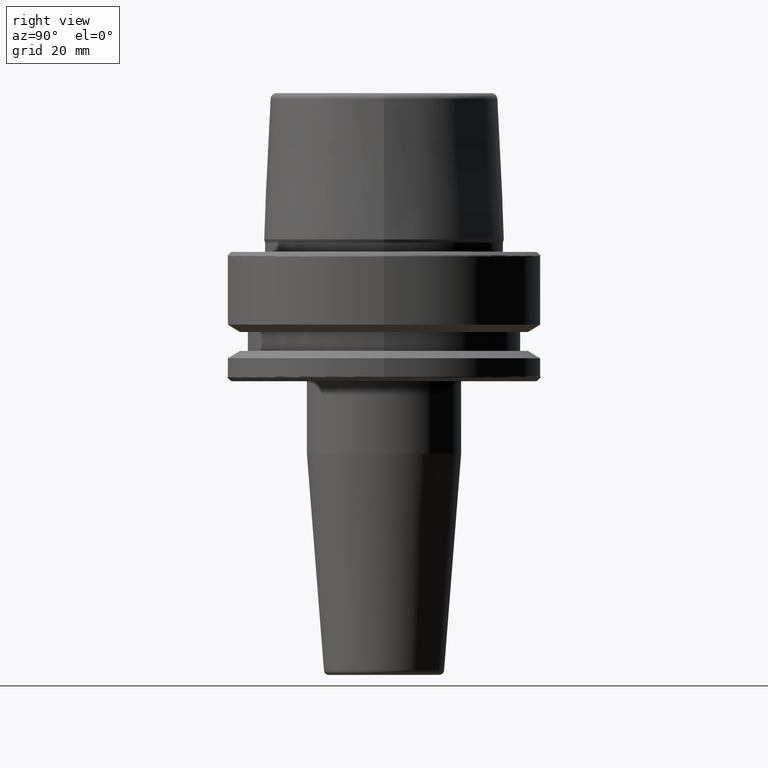
[diagram: clean part render]
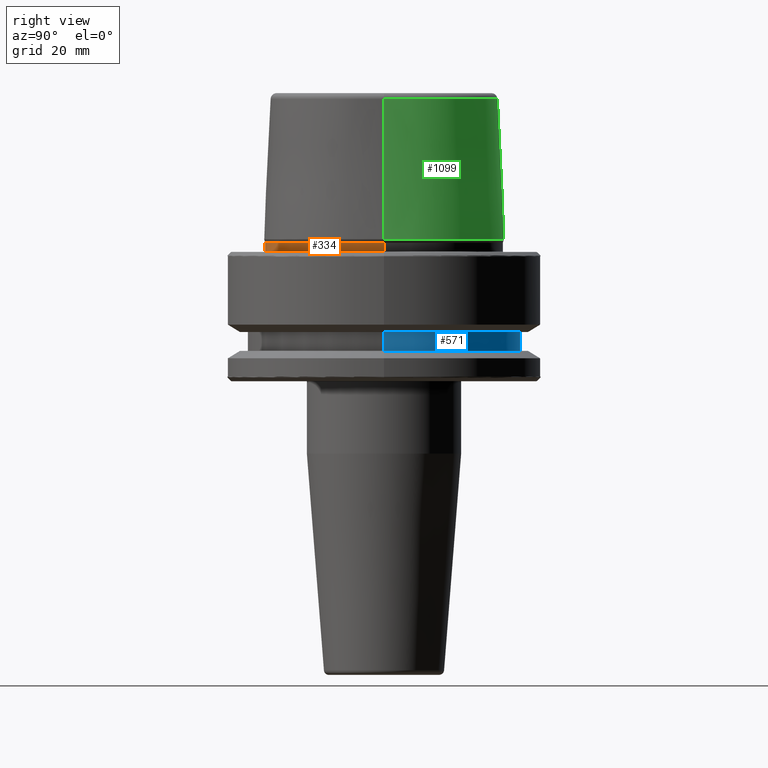
[diagram: same view with three faces highlighted in distinct colors, each labeled with its STEP entity id]
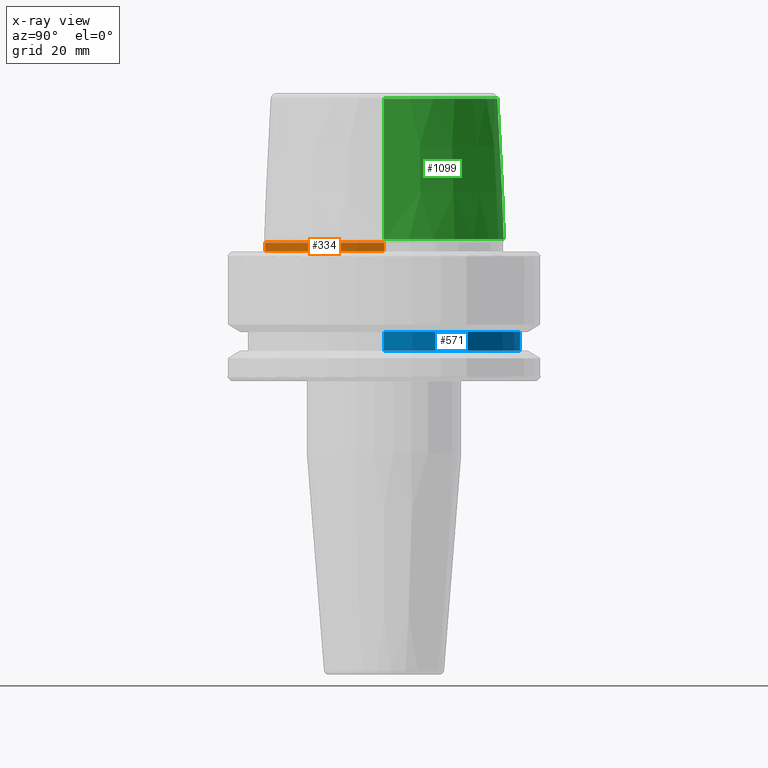
[diagram: x-ray of the same camera — body ghosted, the three highlighted faces saturated]
A machine part, right view with three faces highlighted in distinct colors.
The next image is the same camera in x-ray (body ghosted, the three faces saturated) — at least one of them is partly hidden behind the body in this view.
Their STEP definitions:

[orange] entity #334 — the highlighted cylindrical surface (partial cylindrical patch) has radius 23.89 mm, axis along (-0, -0, 1).
#82 = VERTEX_POINT ( 'NONE', #445 ) ;
#87 = CARTESIAN_POINT ( 'NONE',  ( -23.89000000000000100, 2.925681203163027000E-015, 78.96908074195309300 ) ) ;
#89 = CARTESIAN_POINT ( 'NONE',  ( 0.0000000000000000000, 0.0000000000000000000, 1.845119734979375100 ) ) ;
#93 = EDGE_CURVE ( 'NONE', #1101, #605, #1011, .T. ) ;
#130 = AXIS2_PLACEMENT_3D ( 'NONE', #432, #777, #589 ) ;
#223 = VERTEX_POINT ( 'NONE', #389 ) ;
#228 = FACE_OUTER_BOUND ( 'NONE', #253, .T. ) ;
#253 = EDGE_LOOP ( 'NONE', ( #560, #435, #880, #999 ) ) ;
#315 = VECTOR ( 'NONE', #1251, 1000.000000000000000 ) ;
#334 = ADVANCED_FACE ( 'NONE', ( #228 ), #763, .T. ) ;
#349 = AXIS2_PLACEMENT_3D ( 'NONE', #89, #1139, #1106 ) ;
#385 = AXIS2_PLACEMENT_3D ( 'NONE', #1147, #789, #1005 ) ;
#389 = CARTESIAN_POINT ( 'NONE',  ( -23.89000000000000100, 2.944380070784114200E-015, 1.845119734979375100 ) ) ;
#404 = CARTESIAN_POINT ( 'NONE',  ( 23.89000000000000400, 0.0000000000000000000, 0.1312552021302954000 ) ) ;
#432 = CARTESIAN_POINT ( 'NONE',  ( 0.0000000000000000000, 0.0000000000000000000, 0.1312552021302954000 ) ) ;
#434 = CARTESIAN_POINT ( 'NONE',  ( 23.89000000000000100, 0.0000000000000000000, 1.845119734979375100 ) ) ;
#435 = ORIENTED_EDGE ( 'NONE', *, *, #984, .T. ) ;
#445 = CARTESIAN_POINT ( 'NONE',  ( -23.89000000000000400, 2.961613815265650600E-015, 0.1312552021302954000 ) ) ;
#477 = CARTESIAN_POINT ( 'NONE',  ( 23.89000000000000100, 0.0000000000000000000, 78.96908074195309300 ) ) ;
#506 = EDGE_CURVE ( 'NONE', #223, #605, #1125, .T. ) ;
#527 = VECTOR ( 'NONE', #963, 1000.000000000000000 ) ;
#560 = ORIENTED_EDGE ( 'NONE', *, *, #891, .F. ) ;
#589 = DIRECTION ( 'NONE',  ( 1.000000000000000000, 0.0000000000000000000, 0.0000000000000000000 ) ) ;
#605 = VERTEX_POINT ( 'NONE', #434 ) ;
#763 = CYLINDRICAL_SURFACE ( 'NONE', #385, 23.89000000000000100 ) ;
#777 = DIRECTION ( 'NONE',  ( -0.0000000000000000000, -0.0000000000000000000, 1.000000000000000000 ) ) ;
#789 = DIRECTION ( 'NONE',  ( -0.0000000000000000000, -0.0000000000000000000, 1.000000000000000000 ) ) ;
#824 = LINE ( 'NONE', #87, #315 ) ;
#880 = ORIENTED_EDGE ( 'NONE', *, *, #93, .T. ) ;
#891 = EDGE_CURVE ( 'NONE', #82, #223, #824, .T. ) ;
#963 = DIRECTION ( 'NONE',  ( -0.0000000000000000000, -0.0000000000000000000, 1.000000000000000000 ) ) ;
#974 = CIRCLE ( 'NONE', #130, 23.89000000000000400 ) ;
#984 = EDGE_CURVE ( 'NONE', #82, #1101, #974, .T. ) ;
#999 = ORIENTED_EDGE ( 'NONE', *, *, #506, .F. ) ;
#1005 = DIRECTION ( 'NONE',  ( 1.000000000000000000, 0.0000000000000000000, 0.0000000000000000000 ) ) ;
#1011 = LINE ( 'NONE', #477, #527 ) ;
#1101 = VERTEX_POINT ( 'NONE', #404 ) ;
#1106 = DIRECTION ( 'NONE',  ( 1.000000000000000000, 0.0000000000000000000, 0.0000000000000000000 ) ) ;
#1125 = CIRCLE ( 'NONE', #349, 23.89000000000000100 ) ;
#1139 = DIRECTION ( 'NONE',  ( -0.0000000000000000000, -0.0000000000000000000, 1.000000000000000000 ) ) ;
#1147 = CARTESIAN_POINT ( 'NONE',  ( 0.0000000000000000000, 0.0000000000000000000, 78.96908074195309300 ) ) ;
#1251 = DIRECTION ( 'NONE',  ( -0.0000000000000000000, -0.0000000000000000000, 1.000000000000000000 ) ) ;

[blue] entity #571 — the highlighted cylindrical surface (partial cylindrical patch) has radius 27.5 mm, axis along (-0, -0, 1).
#14 = DIRECTION ( 'NONE',  ( -0.0000000000000000000, -0.0000000000000000000, 1.000000000000000000 ) ) ;
#18 = CYLINDRICAL_SURFACE ( 'NONE', #103, 27.49999999999999600 ) ;
#19 = CARTESIAN_POINT ( 'NONE',  ( -27.49999999999999600, 3.367778697655220900E-015, 78.96908074195309300 ) ) ;
#25 = CARTESIAN_POINT ( 'NONE',  ( -27.49999999999999600, 3.367778697655220900E-015, -16.10000000000001600 ) ) ;
#44 = DIRECTION ( 'NONE',  ( -0.0000000000000000000, -0.0000000000000000000, 1.000000000000000000 ) ) ;
#83 = AXIS2_PLACEMENT_3D ( 'NONE', #840, #173, #741 ) ;
#103 = AXIS2_PLACEMENT_3D ( 'NONE', #1224, #44, #604 ) ;
#114 = AXIS2_PLACEMENT_3D ( 'NONE', #696, #703, #787 ) ;
#173 = DIRECTION ( 'NONE',  ( -0.0000000000000000000, -0.0000000000000000000, 1.000000000000000000 ) ) ;
#184 = VECTOR ( 'NONE', #906, 1000.000000000000000 ) ;
#209 = VECTOR ( 'NONE', #14, 1000.000000000000000 ) ;
#210 = ORIENTED_EDGE ( 'NONE', *, *, #1124, .T. ) ;
#234 = VERTEX_POINT ( 'NONE', #25 ) ;
#265 = CARTESIAN_POINT ( 'NONE',  ( 27.49999999999999600, 0.0000000000000000000, -16.10000000000001600 ) ) ;
#478 = ORIENTED_EDGE ( 'NONE', *, *, #640, .F. ) ;
#498 = CIRCLE ( 'NONE', #83, 27.49999999999999600 ) ;
#545 = CARTESIAN_POINT ( 'NONE',  ( -27.49999999999999600, 3.367778697655220900E-015, -19.90000000000001600 ) ) ;
#571 = ADVANCED_FACE ( 'NONE', ( #1161 ), #18, .T. ) ;
#604 = DIRECTION ( 'NONE',  ( 1.000000000000000000, 0.0000000000000000000, 0.0000000000000000000 ) ) ;
#622 = VERTEX_POINT ( 'NONE', #728 ) ;
#640 = EDGE_CURVE ( 'NONE', #677, #234, #498, .T. ) ;
#677 = VERTEX_POINT ( 'NONE', #265 ) ;
#696 = CARTESIAN_POINT ( 'NONE',  ( 0.0000000000000000000, 0.0000000000000000000, -19.90000000000001600 ) ) ;
#703 = DIRECTION ( 'NONE',  ( -0.0000000000000000000, -0.0000000000000000000, 1.000000000000000000 ) ) ;
#707 = CARTESIAN_POINT ( 'NONE',  ( 27.49999999999999600, 0.0000000000000000000, 78.96908074195309300 ) ) ;
#728 = CARTESIAN_POINT ( 'NONE',  ( 27.49999999999999600, 0.0000000000000000000, -19.90000000000001600 ) ) ;
#741 = DIRECTION ( 'NONE',  ( 1.000000000000000000, 0.0000000000000000000, 0.0000000000000000000 ) ) ;
#785 = ORIENTED_EDGE ( 'NONE', *, *, #990, .T. ) ;
#787 = DIRECTION ( 'NONE',  ( 1.000000000000000000, 0.0000000000000000000, 0.0000000000000000000 ) ) ;
#840 = CARTESIAN_POINT ( 'NONE',  ( 0.0000000000000000000, 0.0000000000000000000, -16.10000000000001600 ) ) ;
#906 = DIRECTION ( 'NONE',  ( -0.0000000000000000000, -0.0000000000000000000, 1.000000000000000000 ) ) ;
#923 = ORIENTED_EDGE ( 'NONE', *, *, #1174, .F. ) ;
#946 = LINE ( 'NONE', #707, #184 ) ;
#990 = EDGE_CURVE ( 'NONE', #1080, #234, #1240, .T. ) ;
#1006 = CIRCLE ( 'NONE', #114, 27.49999999999999600 ) ;
#1010 = EDGE_LOOP ( 'NONE', ( #210, #785, #478, #923 ) ) ;
#1080 = VERTEX_POINT ( 'NONE', #545 ) ;
#1124 = EDGE_CURVE ( 'NONE', #622, #1080, #1006, .T. ) ;
#1161 = FACE_OUTER_BOUND ( 'NONE', #1010, .T. ) ;
#1174 = EDGE_CURVE ( 'NONE', #622, #677, #946, .T. ) ;
#1224 = CARTESIAN_POINT ( 'NONE',  ( 0.0000000000000000000, 0.0000000000000000000, 78.96908074195309300 ) ) ;
#1240 = LINE ( 'NONE', #19, #209 ) ;

[green] entity #1099 — the highlighted conical surface has half-angle 2.868 deg.
#17 = CONICAL_SURFACE ( 'NONE', #236, 24.19537568275369200, 0.05005701257455997400 ) ;
#20 = ORIENTED_EDGE ( 'NONE', *, *, #1040, .T. ) ;
#86 = CARTESIAN_POINT ( 'NONE',  ( 0.0000000000000000000, 0.0000000000000000000, 30.76004333261571900 ) ) ;
#164 = ORIENTED_EDGE ( 'NONE', *, *, #190, .T. ) ;
#167 = LINE ( 'NONE', #1208, #381 ) ;
#182 = CIRCLE ( 'NONE', #183, 22.77957961851797100 ) ;
#183 = AXIS2_PLACEMENT_3D ( 'NONE', #86, #756, #185 ) ;
#185 = DIRECTION ( 'NONE',  ( 1.000000000000000000, 0.0000000000000000000, 0.0000000000000000000 ) ) ;
#190 = EDGE_CURVE ( 'NONE', #1025, #1157, #888, .T. ) ;
#212 = DIRECTION ( 'NONE',  ( 0.05003611051310804400, 6.127656258166099700E-018, -0.9987474093306675200 ) ) ;
#236 = AXIS2_PLACEMENT_3D ( 'NONE', #308, #750, #1067 ) ;
#255 = CARTESIAN_POINT ( 'NONE',  ( 22.77957961851797100, 2.876386432489616700E-015, 30.76004333261571900 ) ) ;
#273 = VERTEX_POINT ( 'NONE', #908 ) ;
#308 = CARTESIAN_POINT ( 'NONE',  ( 0.0000000000000000000, 0.0000000000000000000, 2.500000000000002200 ) ) ;
#346 = ORIENTED_EDGE ( 'NONE', *, *, #1253, .F. ) ;
#381 = VECTOR ( 'NONE', #993, 1000.000000000000200 ) ;
#421 = AXIS2_PLACEMENT_3D ( 'NONE', #639, #759, #446 ) ;
#440 = EDGE_CURVE ( 'NONE', #1062, #273, #167, .T. ) ;
#446 = DIRECTION ( 'NONE',  ( 1.000000000000000000, 0.0000000000000000000, 0.0000000000000000000 ) ) ;
#556 = FACE_OUTER_BOUND ( 'NONE', #1019, .T. ) ;
#591 = CARTESIAN_POINT ( 'NONE',  ( 24.19537568275369200, 2.963078938405201500E-015, 2.500000000000002200 ) ) ;
#639 = CARTESIAN_POINT ( 'NONE',  ( 0.0000000000000000000, 0.0000000000000000000, 2.500000000000002200 ) ) ;
#750 = DIRECTION ( 'NONE',  ( 0.0000000000000000000, 0.0000000000000000000, -1.000000000000000000 ) ) ;
#756 = DIRECTION ( 'NONE',  ( -0.0000000000000000000, -0.0000000000000000000, 1.000000000000000000 ) ) ;
#759 = DIRECTION ( 'NONE',  ( -0.0000000000000000000, -0.0000000000000000000, 1.000000000000000000 ) ) ;
#888 = LINE ( 'NONE', #591, #1143 ) ;
#908 = CARTESIAN_POINT ( 'NONE',  ( -24.19537568275369200, 2.963078938405201500E-015, 2.500000000000002200 ) ) ;
#940 = CIRCLE ( 'NONE', #421, 24.19537568275369200 ) ;
#942 = ORIENTED_EDGE ( 'NONE', *, *, #440, .F. ) ;
#993 = DIRECTION ( 'NONE',  ( -0.05003611051310804400, 0.0000000000000000000, -0.9987474093306675200 ) ) ;
#1019 = EDGE_LOOP ( 'NONE', ( #346, #164, #20, #942 ) ) ;
#1025 = VERTEX_POINT ( 'NONE', #255 ) ;
#1040 = EDGE_CURVE ( 'NONE', #1157, #273, #940, .T. ) ;
#1062 = VERTEX_POINT ( 'NONE', #1223 ) ;
#1067 = DIRECTION ( 'NONE',  ( -1.000000000000000000, 0.0000000000000000000, 0.0000000000000000000 ) ) ;
#1073 = CARTESIAN_POINT ( 'NONE',  ( 24.19537568275369200, 0.0000000000000000000, 2.500000000000002200 ) ) ;
#1099 = ADVANCED_FACE ( 'NONE', ( #556 ), #17, .T. ) ;
#1143 = VECTOR ( 'NONE', #212, 1000.000000000000200 ) ;
#1157 = VERTEX_POINT ( 'NONE', #1073 ) ;
#1208 = CARTESIAN_POINT ( 'NONE',  ( -24.19537568275369200, 0.0000000000000000000, 2.500000000000002200 ) ) ;
#1223 = CARTESIAN_POINT ( 'NONE',  ( -22.77957961851797100, 0.0000000000000000000, 30.76004333261571900 ) ) ;
#1253 = EDGE_CURVE ( 'NONE', #1025, #1062, #182, .T. ) ;